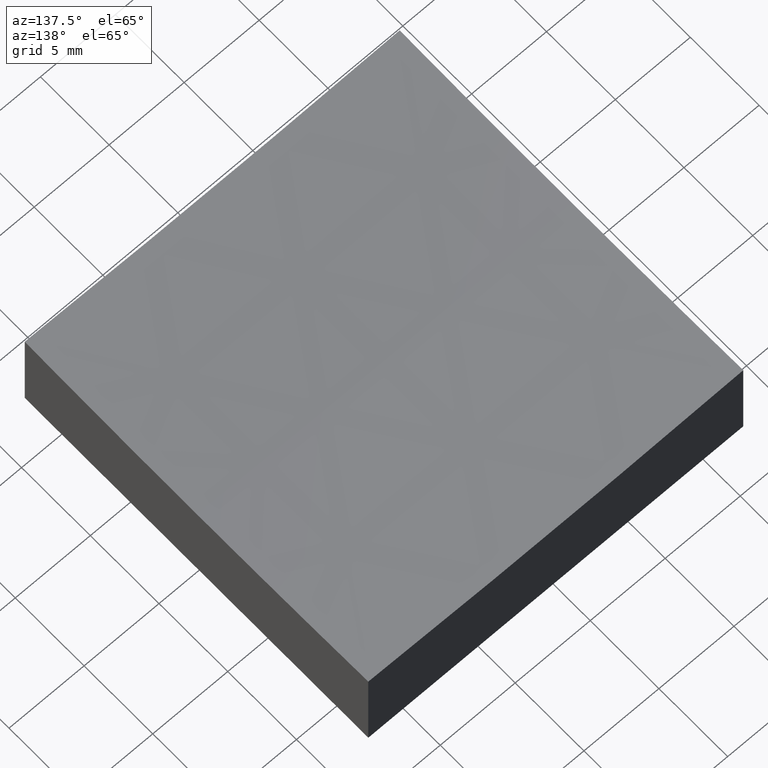
[diagram: clean part render]
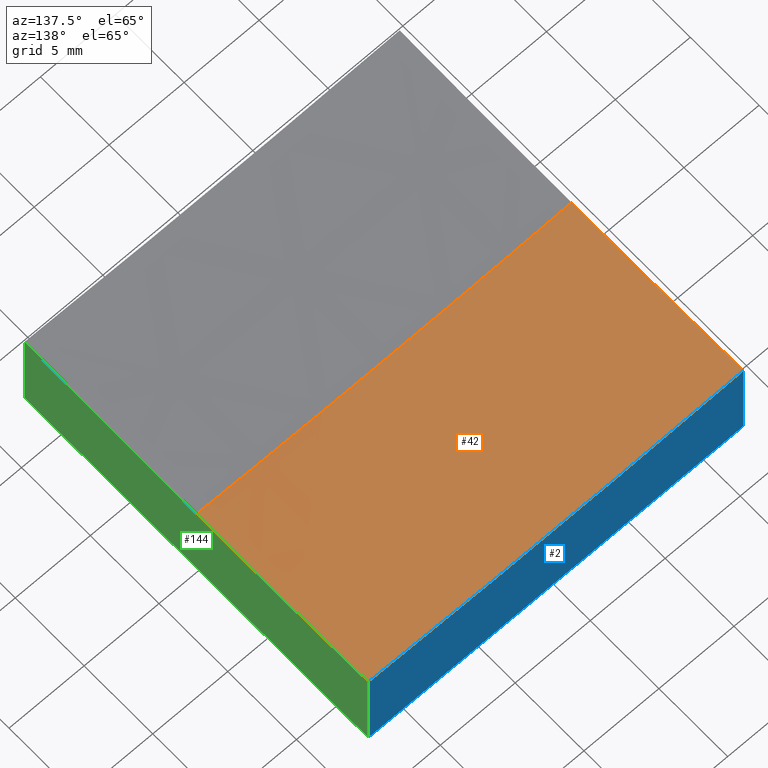
[diagram: same view with three faces highlighted in distinct colors, each labeled with its STEP entity id]
A machine part, auxiliary view with three faces highlighted in distinct colors.
Their STEP definitions:

[orange] entity #42 — the highlighted spherical surface has radius 300 mm.
#5 = DIRECTION ( 'NONE',  ( 1.000000000000000000, 0.0000000000000000000, 0.0000000000000000000 ) ) ;
#8 = CARTESIAN_POINT ( 'NONE',  ( 3.747419205390901213E-14, 0.0000000000000000000, 306.0000000000000000 ) ) ;
#19 = CARTESIAN_POINT ( 'NONE',  ( 3.747419205390901213E-14, 12.50000000000000000, 306.0000000000000000 ) ) ;
#22 = DIRECTION ( 'NONE',  ( 0.0000000000000000000, 0.0000000000000000000, -1.000000000000000000 ) ) ;
#32 = AXIS2_PLACEMENT_3D ( 'NONE', #58, #84, #117 ) ;
#39 = CARTESIAN_POINT ( 'NONE',  ( -12.50000000000000000, 12.50000000000000000, 6.521286232226586321 ) ) ;
#42 = ADVANCED_FACE ( 'NONE', ( #215 ), #195, .F. ) ;
#51 = AXIS2_PLACEMENT_3D ( 'NONE', #19, #221, #154 ) ;
#52 = EDGE_CURVE ( 'NONE', #232, #75, #111, .T. ) ;
#57 = AXIS2_PLACEMENT_3D ( 'NONE', #8, #140, #22 ) ;
#58 = CARTESIAN_POINT ( 'NONE',  ( -12.49999999999999822, -1.734723475976812025E-15, 306.0000000000000000 ) ) ;
#60 = CARTESIAN_POINT ( 'NONE',  ( -12.50000000000000000, 1.530808498934197438E-15, 6.260529792955105144 ) ) ;
#72 = VERTEX_POINT ( 'NONE', #156 ) ;
#74 = EDGE_CURVE ( 'NONE', #151, #75, #192, .T. ) ;
#75 = VERTEX_POINT ( 'NONE', #39 ) ;
#84 = DIRECTION ( 'NONE',  ( 1.000000000000000000, 1.387778780781445676E-16, -0.0000000000000000000 ) ) ;
#91 = AXIS2_PLACEMENT_3D ( 'NONE', #202, #225, #163 ) ;
#93 = VERTEX_POINT ( 'NONE', #97 ) ;
#97 = CARTESIAN_POINT ( 'NONE',  ( 12.50000000000000355, 0.0000000000000000000, 6.260529792955105144 ) ) ;
#100 = EDGE_CURVE ( 'NONE', #72, #93, #220, .T. ) ;
#109 = ORIENTED_EDGE ( 'NONE', *, *, #52, .T. ) ;
#111 = CIRCLE ( 'NONE', #51, 299.7394702070449171 ) ;
#117 = DIRECTION ( 'NONE',  ( -1.388985020714326984E-16, 1.000000000000000000, 0.0000000000000000000 ) ) ;
#121 = CARTESIAN_POINT ( 'NONE',  ( 3.747419205390901213E-14, 0.0000000000000000000, 306.0000000000000000 ) ) ;
#124 = EDGE_CURVE ( 'NONE', #72, #151, #246, .T. ) ;
#131 = ORIENTED_EDGE ( 'NONE', *, *, #100, .T. ) ;
#140 = DIRECTION ( 'NONE',  ( 0.0000000000000000000, -1.000000000000000000, 0.0000000000000000000 ) ) ;
#151 = VERTEX_POINT ( 'NONE', #60 ) ;
#154 = DIRECTION ( 'NONE',  ( 0.0000000000000000000, 0.0000000000000000000, 1.000000000000000000 ) ) ;
#155 = DIRECTION ( 'NONE',  ( -1.000000000000000000, 1.224646799147353207E-16, 0.0000000000000000000 ) ) ;
#156 = CARTESIAN_POINT ( 'NONE',  ( 6.431938274691235722E-14, 0.0000000000000000000, 6.000000000000060396 ) ) ;
#163 = DIRECTION ( 'NONE',  ( -1.388985020714326984E-16, 1.000000000000000000, 0.0000000000000000000 ) ) ;
#164 = CIRCLE ( 'NONE', #91, 299.7394702070449171 ) ;
#170 = ORIENTED_EDGE ( 'NONE', *, *, #235, .T. ) ;
#175 = ORIENTED_EDGE ( 'NONE', *, *, #74, .F. ) ;
#178 = DIRECTION ( 'NONE',  ( -0.0000000000000000000, 1.000000000000000000, 0.0000000000000000000 ) ) ;
#182 = DIRECTION ( 'NONE',  ( 1.224646799147353207E-16, 1.000000000000000000, 3.459826704919666981E-33 ) ) ;
#184 = AXIS2_PLACEMENT_3D ( 'NONE', #208, #178, #5 ) ;
#192 = CIRCLE ( 'NONE', #32, 299.7394702070449171 ) ;
#195 = SPHERICAL_SURFACE ( 'NONE', #184, 299.9999999999999432 ) ;
#202 = CARTESIAN_POINT ( 'NONE',  ( 12.50000000000000178, 1.734723475976802164E-15, 306.0000000000000000 ) ) ;
#204 = ORIENTED_EDGE ( 'NONE', *, *, #124, .F. ) ;
#205 = AXIS2_PLACEMENT_3D ( 'NONE', #121, #182, #155 ) ;
#208 = CARTESIAN_POINT ( 'NONE',  ( 3.747419205390901213E-14, 0.0000000000000000000, 306.0000000000000000 ) ) ;
#215 = FACE_OUTER_BOUND ( 'NONE', #233, .T. ) ;
#220 = CIRCLE ( 'NONE', #57, 299.9999999999999432 ) ;
#221 = DIRECTION ( 'NONE',  ( 0.0000000000000000000, 1.000000000000000000, 0.0000000000000000000 ) ) ;
#225 = DIRECTION ( 'NONE',  ( 1.000000000000000000, 1.387778780781445676E-16, -0.0000000000000000000 ) ) ;
#232 = VERTEX_POINT ( 'NONE', #242 ) ;
#233 = EDGE_LOOP ( 'NONE', ( #204, #131, #170, #109, #175 ) ) ;
#235 = EDGE_CURVE ( 'NONE', #93, #232, #164, .T. ) ;
#242 = CARTESIAN_POINT ( 'NONE',  ( 12.50000000000000000, 12.50000000000000000, 6.521286232226586321 ) ) ;
#246 = CIRCLE ( 'NONE', #205, 299.9999999999999432 ) ;

[blue] entity #2 — the highlighted planar face has unit normal (0, 1, 0).
#2 = ADVANCED_FACE ( 'NONE', ( #30 ), #251, .T. ) ;
#17 = EDGE_LOOP ( 'NONE', ( #207, #27, #107, #194 ) ) ;
#18 = CARTESIAN_POINT ( 'NONE',  ( -12.50000000000000000, 12.50000000000000000, 20.00000000000000000 ) ) ;
#19 = CARTESIAN_POINT ( 'NONE',  ( 3.747419205390901213E-14, 12.50000000000000000, 306.0000000000000000 ) ) ;
#25 = LINE ( 'NONE', #244, #105 ) ;
#27 = ORIENTED_EDGE ( 'NONE', *, *, #104, .T. ) ;
#30 = FACE_OUTER_BOUND ( 'NONE', #17, .T. ) ;
#39 = CARTESIAN_POINT ( 'NONE',  ( -12.50000000000000000, 12.50000000000000000, 6.521286232226586321 ) ) ;
#43 = DIRECTION ( 'NONE',  ( -0.0000000000000000000, -0.0000000000000000000, -1.000000000000000000 ) ) ;
#51 = AXIS2_PLACEMENT_3D ( 'NONE', #19, #221, #154 ) ;
#52 = EDGE_CURVE ( 'NONE', #232, #75, #111, .T. ) ;
#61 = CARTESIAN_POINT ( 'NONE',  ( -12.50000000000000000, 12.50000000000000000, 0.0000000000000000000 ) ) ;
#71 = VERTEX_POINT ( 'NONE', #197 ) ;
#75 = VERTEX_POINT ( 'NONE', #39 ) ;
#86 = DIRECTION ( 'NONE',  ( -0.0000000000000000000, -0.0000000000000000000, -1.000000000000000000 ) ) ;
#90 = EDGE_CURVE ( 'NONE', #75, #71, #137, .T. ) ;
#94 = DIRECTION ( 'NONE',  ( 0.0000000000000000000, 1.000000000000000000, 0.0000000000000000000 ) ) ;
#99 = DIRECTION ( 'NONE',  ( 1.000000000000000000, 0.0000000000000000000, 0.0000000000000000000 ) ) ;
#104 = EDGE_CURVE ( 'NONE', #232, #186, #25, .T. ) ;
#105 = VECTOR ( 'NONE', #86, 1000.000000000000000 ) ;
#107 = ORIENTED_EDGE ( 'NONE', *, *, #128, .F. ) ;
#111 = CIRCLE ( 'NONE', #51, 299.7394702070449171 ) ;
#118 = VECTOR ( 'NONE', #99, 1000.000000000000000 ) ;
#128 = EDGE_CURVE ( 'NONE', #71, #186, #219, .T. ) ;
#137 = LINE ( 'NONE', #240, #199 ) ;
#154 = DIRECTION ( 'NONE',  ( 0.0000000000000000000, 0.0000000000000000000, 1.000000000000000000 ) ) ;
#186 = VERTEX_POINT ( 'NONE', #201 ) ;
#194 = ORIENTED_EDGE ( 'NONE', *, *, #90, .F. ) ;
#197 = CARTESIAN_POINT ( 'NONE',  ( -12.50000000000000000, 12.50000000000000000, 0.0000000000000000000 ) ) ;
#199 = VECTOR ( 'NONE', #43, 1000.000000000000000 ) ;
#201 = CARTESIAN_POINT ( 'NONE',  ( 12.50000000000000000, 12.50000000000000000, 0.0000000000000000000 ) ) ;
#207 = ORIENTED_EDGE ( 'NONE', *, *, #52, .F. ) ;
#213 = DIRECTION ( 'NONE',  ( 0.0000000000000000000, -0.0000000000000000000, 1.000000000000000000 ) ) ;
#219 = LINE ( 'NONE', #61, #118 ) ;
#221 = DIRECTION ( 'NONE',  ( 0.0000000000000000000, 1.000000000000000000, 0.0000000000000000000 ) ) ;
#232 = VERTEX_POINT ( 'NONE', #242 ) ;
#240 = CARTESIAN_POINT ( 'NONE',  ( -12.50000000000000000, 12.50000000000000000, 20.00000000000000000 ) ) ;
#242 = CARTESIAN_POINT ( 'NONE',  ( 12.50000000000000000, 12.50000000000000000, 6.521286232226586321 ) ) ;
#244 = CARTESIAN_POINT ( 'NONE',  ( 12.50000000000000000, 12.50000000000000000, 20.00000000000000000 ) ) ;
#250 = AXIS2_PLACEMENT_3D ( 'NONE', #18, #94, #213 ) ;
#251 = PLANE ( 'NONE',  #250 ) ;

[green] entity #144 — the highlighted planar face has unit normal (1, 0, -0).
#3 = DIRECTION ( 'NONE',  ( 1.000000000000000000, 1.387778780781445676E-16, -0.0000000000000000000 ) ) ;
#4 = PLANE ( 'NONE',  #181 ) ;
#12 = ORIENTED_EDGE ( 'NONE', *, *, #81, .F. ) ;
#25 = LINE ( 'NONE', #244, #105 ) ;
#33 = VERTEX_POINT ( 'NONE', #134 ) ;
#35 = DIRECTION ( 'NONE',  ( -1.388985020714326984E-16, 1.000000000000000000, 0.0000000000000000000 ) ) ;
#40 = DIRECTION ( 'NONE',  ( -1.387778780781445676E-16, 1.000000000000000000, 0.0000000000000000000 ) ) ;
#78 = ORIENTED_EDGE ( 'NONE', *, *, #114, .F. ) ;
#81 = EDGE_CURVE ( 'NONE', #33, #93, #139, .T. ) ;
#83 = LINE ( 'NONE', #122, #209 ) ;
#86 = DIRECTION ( 'NONE',  ( -0.0000000000000000000, -0.0000000000000000000, -1.000000000000000000 ) ) ;
#87 = AXIS2_PLACEMENT_3D ( 'NONE', #136, #3, #35 ) ;
#91 = AXIS2_PLACEMENT_3D ( 'NONE', #202, #225, #163 ) ;
#93 = VERTEX_POINT ( 'NONE', #97 ) ;
#97 = CARTESIAN_POINT ( 'NONE',  ( 12.50000000000000355, 0.0000000000000000000, 6.260529792955105144 ) ) ;
#98 = CARTESIAN_POINT ( 'NONE',  ( 12.50000000000000355, -12.50000000000000000, 20.00000000000000000 ) ) ;
#104 = EDGE_CURVE ( 'NONE', #232, #186, #25, .T. ) ;
#105 = VECTOR ( 'NONE', #86, 1000.000000000000000 ) ;
#114 = EDGE_CURVE ( 'NONE', #186, #210, #83, .T. ) ;
#120 = DIRECTION ( 'NONE',  ( -0.0000000000000000000, -0.0000000000000000000, -1.000000000000000000 ) ) ;
#122 = CARTESIAN_POINT ( 'NONE',  ( 12.50000000000000000, 12.50000000000000000, 0.0000000000000000000 ) ) ;
#134 = CARTESIAN_POINT ( 'NONE',  ( 12.50000000000000355, -12.50000000000000000, 6.521286232226586321 ) ) ;
#136 = CARTESIAN_POINT ( 'NONE',  ( 12.50000000000000178, 1.734723475976802164E-15, 306.0000000000000000 ) ) ;
#139 = CIRCLE ( 'NONE', #87, 299.7394702070449171 ) ;
#144 = ADVANCED_FACE ( 'NONE', ( #161 ), #4, .T. ) ;
#157 = CARTESIAN_POINT ( 'NONE',  ( 12.50000000000000355, -12.50000000000000000, 0.0000000000000000000 ) ) ;
#161 = FACE_OUTER_BOUND ( 'NONE', #165, .T. ) ;
#163 = DIRECTION ( 'NONE',  ( -1.388985020714326984E-16, 1.000000000000000000, 0.0000000000000000000 ) ) ;
#164 = CIRCLE ( 'NONE', #91, 299.7394702070449171 ) ;
#165 = EDGE_LOOP ( 'NONE', ( #12, #212, #78, #168, #190 ) ) ;
#168 = ORIENTED_EDGE ( 'NONE', *, *, #104, .F. ) ;
#171 = EDGE_CURVE ( 'NONE', #33, #210, #203, .T. ) ;
#181 = AXIS2_PLACEMENT_3D ( 'NONE', #198, #223, #40 ) ;
#186 = VERTEX_POINT ( 'NONE', #201 ) ;
#187 = VECTOR ( 'NONE', #120, 1000.000000000000000 ) ;
#190 = ORIENTED_EDGE ( 'NONE', *, *, #235, .F. ) ;
#198 = CARTESIAN_POINT ( 'NONE',  ( 12.50000000000000000, 12.50000000000000000, 20.00000000000000000 ) ) ;
#201 = CARTESIAN_POINT ( 'NONE',  ( 12.50000000000000000, 12.50000000000000000, 0.0000000000000000000 ) ) ;
#202 = CARTESIAN_POINT ( 'NONE',  ( 12.50000000000000178, 1.734723475976802164E-15, 306.0000000000000000 ) ) ;
#203 = LINE ( 'NONE', #98, #187 ) ;
#209 = VECTOR ( 'NONE', #224, 1000.000000000000000 ) ;
#210 = VERTEX_POINT ( 'NONE', #157 ) ;
#212 = ORIENTED_EDGE ( 'NONE', *, *, #171, .T. ) ;
#223 = DIRECTION ( 'NONE',  ( 1.000000000000000000, 1.387778780781445676E-16, -0.0000000000000000000 ) ) ;
#224 = DIRECTION ( 'NONE',  ( 1.387778780781445676E-16, -1.000000000000000000, 0.0000000000000000000 ) ) ;
#225 = DIRECTION ( 'NONE',  ( 1.000000000000000000, 1.387778780781445676E-16, -0.0000000000000000000 ) ) ;
#232 = VERTEX_POINT ( 'NONE', #242 ) ;
#235 = EDGE_CURVE ( 'NONE', #93, #232, #164, .T. ) ;
#242 = CARTESIAN_POINT ( 'NONE',  ( 12.50000000000000000, 12.50000000000000000, 6.521286232226586321 ) ) ;
#244 = CARTESIAN_POINT ( 'NONE',  ( 12.50000000000000000, 12.50000000000000000, 20.00000000000000000 ) ) ;